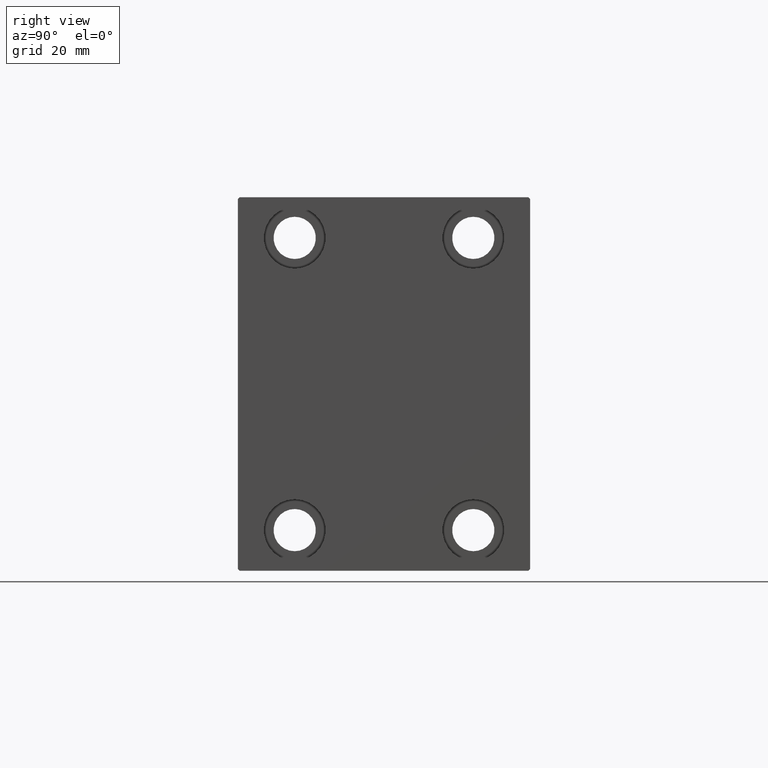
[diagram: clean part render]
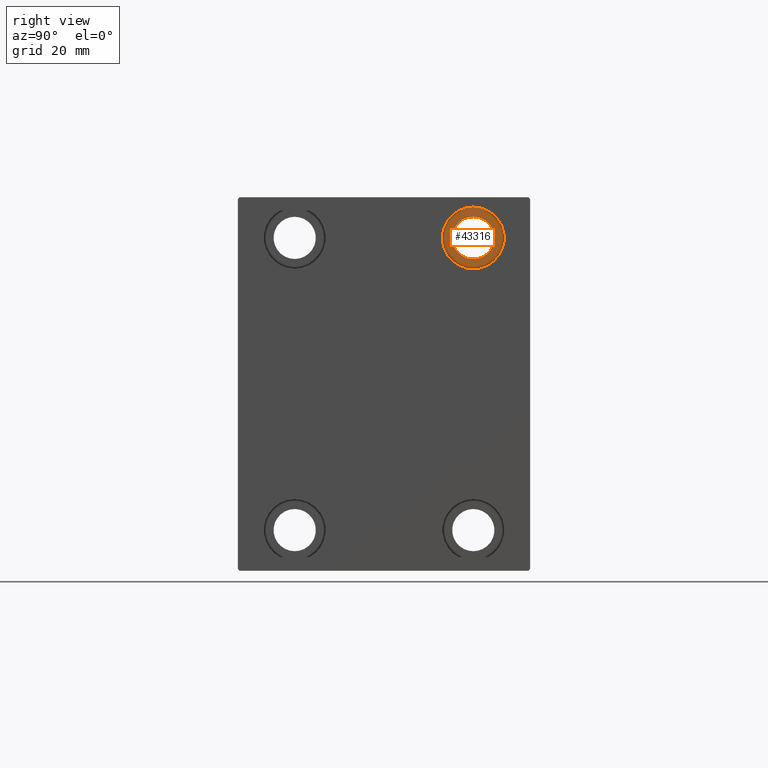
[diagram: same view with one face highlighted and labeled with its STEP entity id]
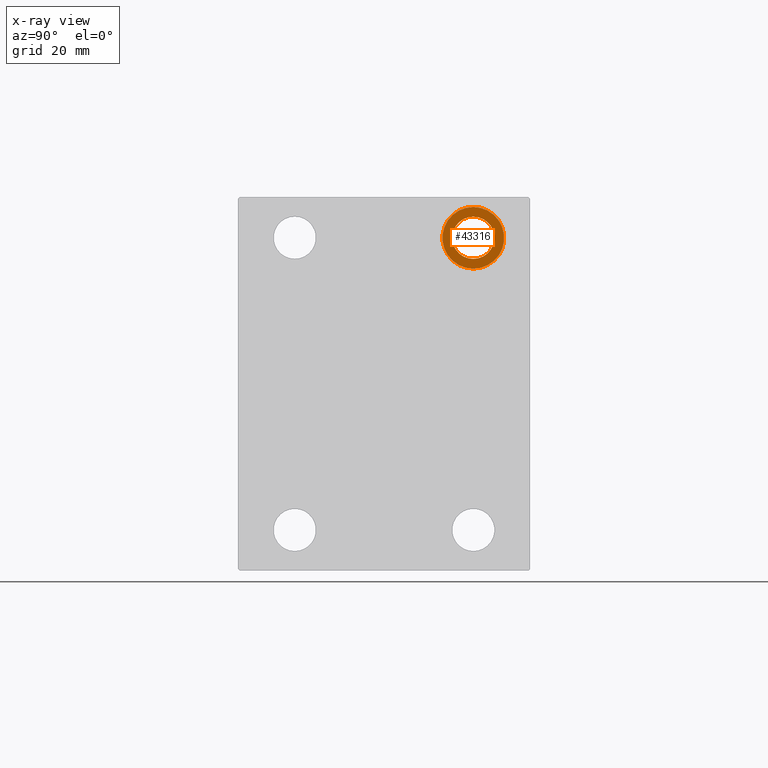
[diagram: x-ray of the same camera — body ghosted, the highlighted face saturated]
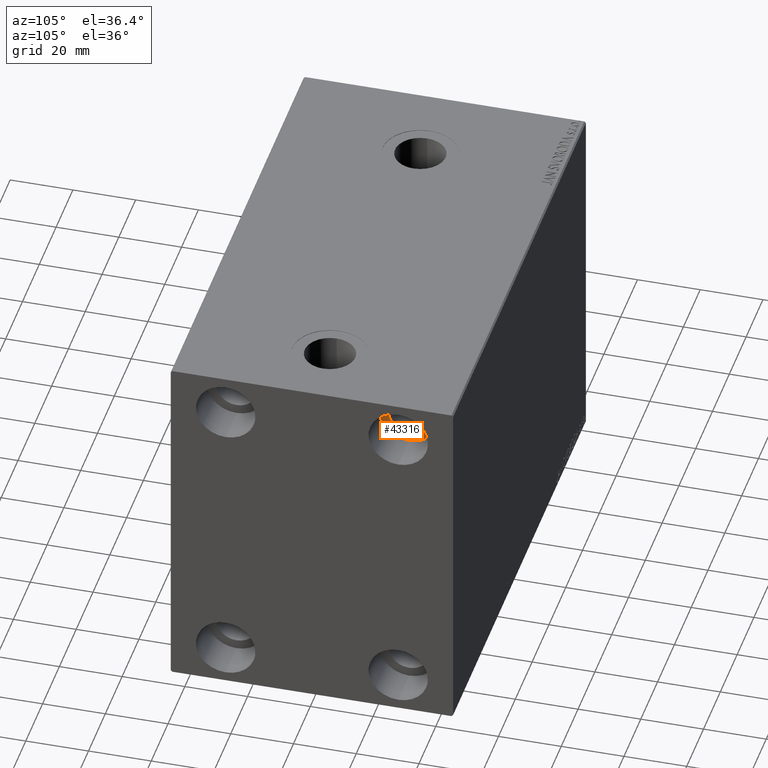
[diagram: same view with one face highlighted and labeled with its STEP entity id]
A machine part, right view. The second image highlights one B-rep face of the part: STEP entity #43316.
The next image is the same camera in x-ray: the body ghosted, the highlighted face saturated — about 0% of this face is hidden behind the body in this view.
A second angle (auxiliary view) of the same face is appended — the face is thin or edge-on in the first view.
In plain terms, the highlighted planar face has unit normal (1, 0, 0).
Its self-contained STEP definition (entity closure, byte-faithful):
#564 = CIRCLE ( 'NONE', #36860, 6.499999999999999112 ) ;
#1925 = EDGE_LOOP ( 'NONE', ( #25166, #9432 ) ) ;
#2623 = PLANE ( 'NONE',  #4274 ) ;
#3787 = DIRECTION ( 'NONE',  ( 0.000000000000000000, 0.000000000000000000, -1.000000000000000000 ) ) ;
#4274 = AXIS2_PLACEMENT_3D ( 'NONE', #33156, #19134, #12875 ) ;
#4497 = CIRCLE ( 'NONE', #21564, 9.500000000000001776 ) ;
#4797 = EDGE_CURVE ( 'NONE', #14270, #32846, #564, .T. ) ;
#5100 = DIRECTION ( 'NONE',  ( -1.000000000000000000, -0.000000000000000000, -0.000000000000000000 ) ) ;
#6476 = VERTEX_POINT ( 'NONE', #14378 ) ;
#8755 = CIRCLE ( 'NONE', #18711, 9.500000000000001776 ) ;
#8834 = DIRECTION ( 'NONE',  ( 0.000000000000000000, 0.000000000000000000, -1.000000000000000000 ) ) ;
#8874 = CARTESIAN_POINT ( 'NONE',  ( 145.0000000000000000, 27.50000000000001066, 45.00000000000000711 ) ) ;
#9432 = ORIENTED_EDGE ( 'NONE', *, *, #17732, .F. ) ;
#10984 = ORIENTED_EDGE ( 'NONE', *, *, #4797, .T. ) ;
#12875 = DIRECTION ( 'NONE',  ( 0.000000000000000000, 0.000000000000000000, 1.000000000000000000 ) ) ;
#14270 = VERTEX_POINT ( 'NONE', #23304 ) ;
#14378 = CARTESIAN_POINT ( 'NONE',  ( 145.0000000000000000, 27.50000000000001066, 35.50000000000000711 ) ) ;
#15127 = DIRECTION ( 'NONE',  ( -1.000000000000000000, -0.000000000000000000, -0.000000000000000000 ) ) ;
#16652 = FACE_BOUND ( 'NONE', #29541, .T. ) ;
#17666 = EDGE_CURVE ( 'NONE', #6476, #35350, #4497, .T. ) ;
#17732 = EDGE_CURVE ( 'NONE', #35350, #6476, #8755, .T. ) ;
#18711 = AXIS2_PLACEMENT_3D ( 'NONE', #8874, #5100, #29363 ) ;
#19134 = DIRECTION ( 'NONE',  ( 1.000000000000000000, 0.000000000000000000, -0.000000000000000000 ) ) ;
#21283 = AXIS2_PLACEMENT_3D ( 'NONE', #32896, #29970, #8834 ) ;
#21564 = AXIS2_PLACEMENT_3D ( 'NONE', #25150, #15127, #41439 ) ;
#23304 = CARTESIAN_POINT ( 'NONE',  ( 145.0000000000000000, 27.50000000000001066, 38.50000000000000711 ) ) ;
#25150 = CARTESIAN_POINT ( 'NONE',  ( 145.0000000000000000, 27.50000000000001066, 45.00000000000000711 ) ) ;
#25166 = ORIENTED_EDGE ( 'NONE', *, *, #17666, .F. ) ;
#29363 = DIRECTION ( 'NONE',  ( 0.000000000000000000, 0.000000000000000000, 1.000000000000000000 ) ) ;
#29541 = EDGE_LOOP ( 'NONE', ( #40250, #10984 ) ) ;
#29970 = DIRECTION ( 'NONE',  ( -1.000000000000000000, -0.000000000000000000, -0.000000000000000000 ) ) ;
#30513 = DIRECTION ( 'NONE',  ( -1.000000000000000000, -0.000000000000000000, -0.000000000000000000 ) ) ;
#32021 = CARTESIAN_POINT ( 'NONE',  ( 145.0000000000000000, 27.50000000000001066, 51.50000000000000711 ) ) ;
#32846 = VERTEX_POINT ( 'NONE', #32021 ) ;
#32896 = CARTESIAN_POINT ( 'NONE',  ( 145.0000000000000000, 27.50000000000001066, 45.00000000000000711 ) ) ;
#33156 = CARTESIAN_POINT ( 'NONE',  ( 145.0000000000000000, 0.000000000000000000, 0.000000000000000000 ) ) ;
#33850 = CARTESIAN_POINT ( 'NONE',  ( 145.0000000000000000, 27.50000000000001066, 45.00000000000000711 ) ) ;
#34802 = CIRCLE ( 'NONE', #21283, 6.499999999999999112 ) ;
#35350 = VERTEX_POINT ( 'NONE', #36857 ) ;
#36293 = FACE_OUTER_BOUND ( 'NONE', #1925, .T. ) ;
#36857 = CARTESIAN_POINT ( 'NONE',  ( 145.0000000000000000, 27.50000000000001066, 54.50000000000000711 ) ) ;
#36860 = AXIS2_PLACEMENT_3D ( 'NONE', #33850, #30513, #3787 ) ;
#37045 = EDGE_CURVE ( 'NONE', #32846, #14270, #34802, .T. ) ;
#40250 = ORIENTED_EDGE ( 'NONE', *, *, #37045, .T. ) ;
#41439 = DIRECTION ( 'NONE',  ( 0.000000000000000000, 0.000000000000000000, 1.000000000000000000 ) ) ;
#43316 = ADVANCED_FACE ( 'NONE', ( #36293, #16652 ), #2623, .T. ) ;